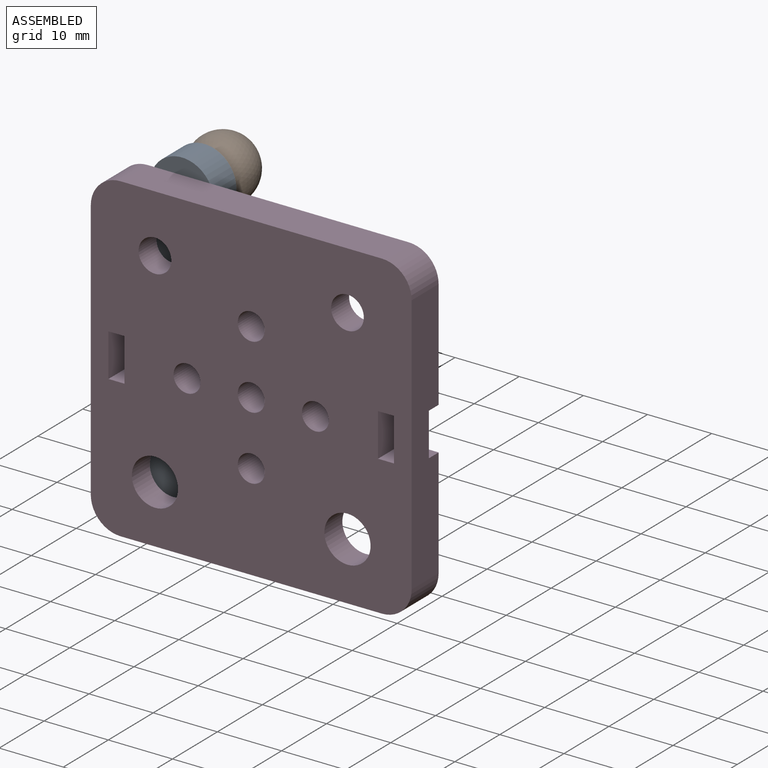
[diagram: assembled view]
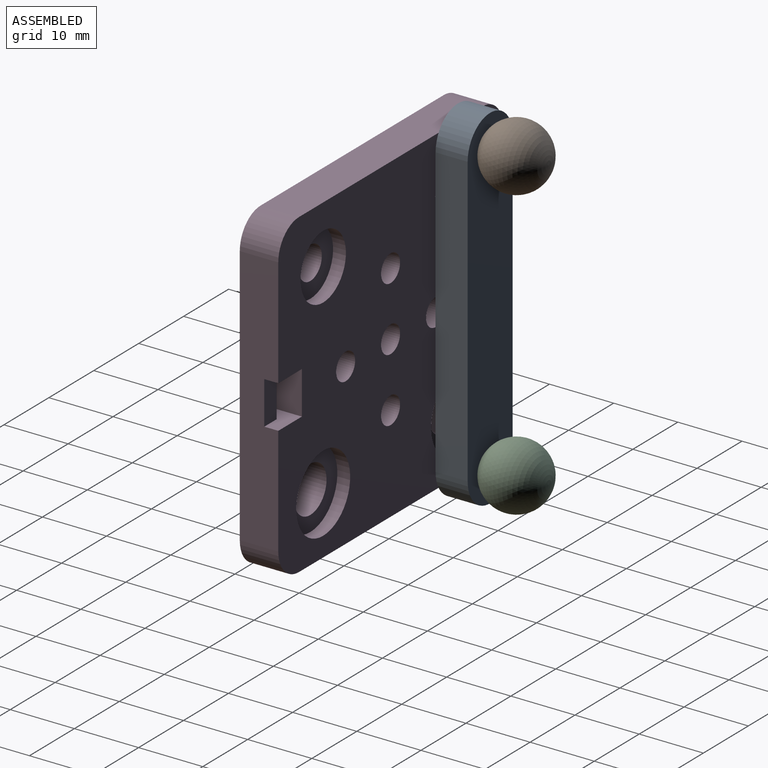
[diagram: assembled view, second angle]
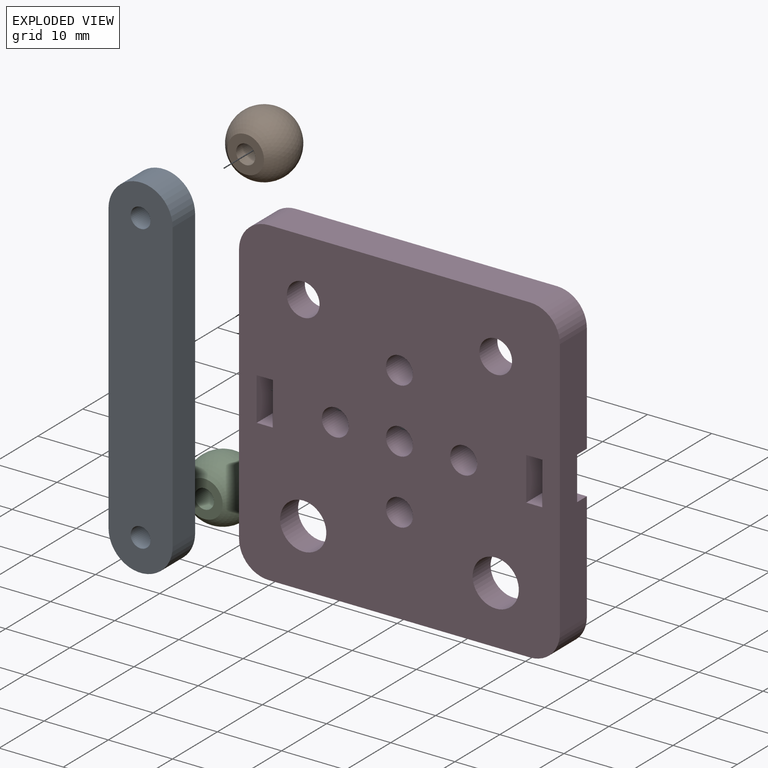
[diagram: exploded view]
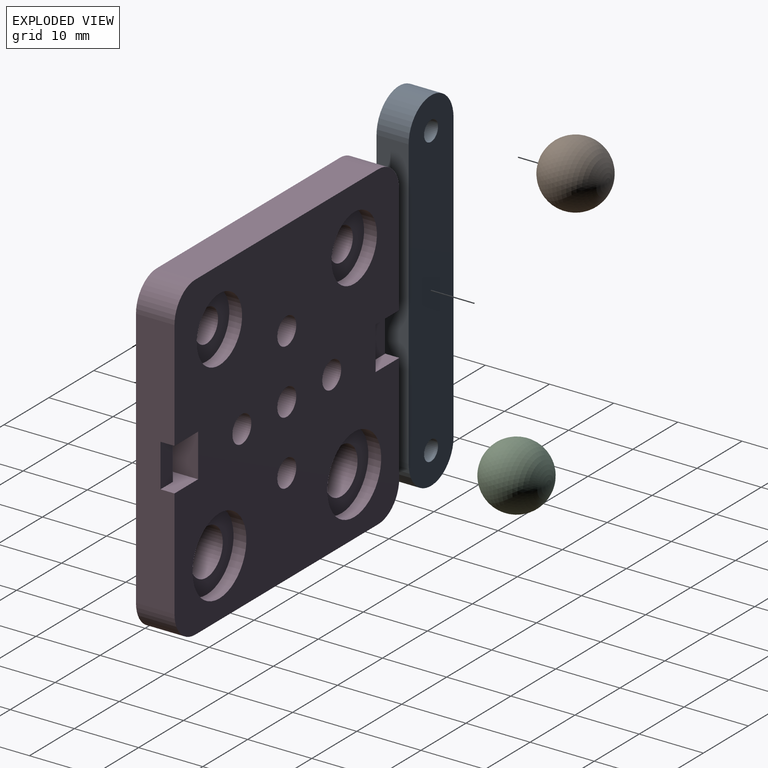
[diagram: exploded view, second angle]
ASSEMBLY  parts=4 mates=2
PART A: 8 faces, bbox 10x5x55 mm
  f0: cylinder r=5mm len=10mm, axis (0,-1,0), area 78.5mm2, adj f1,f4,f6,f7
  f1: plane 45x5mm, normal (1,0,0), area 225mm2, adj f0,f2,f6,f7
  f2: cylinder r=5mm len=10mm, axis (0,-1,0), area 78.5mm2, adj f1,f4,f6,f7
  f3: cylinder r=1.55mm len=5mm, axis (0,-1,0), area 48.7mm2, adj f6,f7
  f4: plane 45x5mm, normal (-1,0,0), area 225mm2, adj f0,f2,f6,f7
  f5: cylinder r=1.55mm len=5mm, axis (0,-1,0), area 48.7mm2, adj f6,f7
  f6: plane 55x10mm, normal (0,1,0), area 513.4mm2, adj f0,f1,f2,f3,f4,f5
  f7: plane 55x10mm, normal (0,-1,0), area 513.4mm2, adj f0,f1,f2,f3,f4,f5
PART B: 4 faces, bbox 10x9.1x10 mm
  f0: sphere r=5mm, area 286.2mm2, adj f3
  f1: plane 3x3mm, normal (0,-1,0), area 7.1mm2, adj f2
  f2: cylinder r=1.5mm len=4.11mm, axis (0,-1,0), area 38.7mm2, adj f1,f3
  f3: plane 5.7x5.7mm, normal (0,-1,0), area 18.4mm2, adj f0,f2
PART C: same geometry as B
PART D: 37 faces, bbox 50x6x50 mm
  f0: cylinder r=2.55mm len=5.1mm, axis (0,-1,0), area 64.1mm2, adj f5,f26
  f1: cylinder r=2.55mm len=5.1mm, axis (0,-1,0), area 64.1mm2, adj f5,f24
  f2: cylinder r=3.6mm len=7.2mm, axis (0,-1,0), area 90.5mm2, adj f5,f22
  f3: cylinder r=3.6mm len=7.2mm, axis (0,-1,0), area 90.5mm2, adj f5,f20
  f4: plane 50x50mm, normal (0,1,0), area 1955.5mm2, adj f6,f7,f8,f9,f10,f11,f12,f13
  f5: plane 50x50mm, normal (0,-1,0), area 2256.5mm2, adj f0,f1,f2,f3,f6,f7,f8,f9
  f6: cylinder r=4.63mm len=6mm, axis (0,-1,0), area 43.7mm2, adj f4,f5,f7,f13
  f7: plane 40.73x6mm, normal (-1,0,0), area 229.8mm2, adj f4,f5,f6,f8,f27,f29,f30
  f8: cylinder r=4.63mm len=6mm, axis (0,-1,0), area 43.7mm2, adj f4,f5,f7,f9
  f9: plane 40.73x6mm, normal (0,0,1), area 244.4mm2, adj f4,f5,f8,f10
  f10: cylinder r=4.63mm len=6mm, axis (0,-1,0), area 43.7mm2, adj f4,f5,f9,f11
  f11: plane 40.73x6mm, normal (1,0,0), area 229.8mm2, adj f4,f5,f10,f12,f31,f32,f34
  f12: cylinder r=4.63mm len=6mm, axis (0,-1,0), area 43.7mm2, adj f4,f5,f11,f13
  f13: plane 40.73x6mm, normal (0,0,-1), area 244.4mm2, adj f4,f5,f6,f12
  f14: cylinder r=2.1mm len=6mm, axis (0,1,0), area 79.2mm2, adj f4,f5
  f15: cylinder r=2.1mm len=6mm, axis (0,1,0), area 79.2mm2, adj f4,f5
  f16: cylinder r=2.1mm len=6mm, axis (0,1,0), area 79.2mm2, adj f4,f5
  f17: cylinder r=2.1mm len=6mm, axis (0,1,0), area 79.2mm2, adj f4,f5
  f18: cylinder r=2.1mm len=6mm, axis (0,1,0), area 79.2mm2, adj f4,f5
  f19: cylinder r=6mm len=12mm, axis (0,1,0), area 75.4mm2, adj f4,f20
  f20: plane 12x12mm, normal (0,1,0), area 72.4mm2, adj f3,f19
  f21: cylinder r=6mm len=12mm, axis (0,1,0), area 75.4mm2, adj f4,f22
  f22: plane 12x12mm, normal (0,1,0), area 72.4mm2, adj f2,f21
  f23: cylinder r=5.05mm len=10.1mm, axis (0,1,0), area 63.5mm2, adj f4,f24
  f24: plane 10.1x10.1mm, normal (0,1,0), area 59.7mm2, adj f1,f23
  f25: cylinder r=5.05mm len=10.1mm, axis (0,1,0), area 63.5mm2, adj f4,f26
  f26: plane 10.1x10.1mm, normal (0,1,0), area 59.7mm2, adj f0,f25
  f27: plane 6x5.25mm, normal (0,0,1), area 21mm2, adj f4,f5,f7,f28,f30,f35
  f28: plane 6.7x6mm, normal (-1,0,0), area 40.2mm2, adj f4,f5,f27,f29
  f29: plane 6x5.25mm, normal (0,0,-1), area 21mm2, adj f4,f5,f7,f28,f30,f35
  f30: plane 6.7x2.75mm, normal (0,1,0), area 18.4mm2, adj f7,f27,f29,f35
  f31: plane 6x5.25mm, normal (0,0,1), area 21mm2, adj f4,f5,f11,f33,f34,f36
  f32: plane 6x5.25mm, normal (0,0,-1), area 21mm2, adj f4,f5,f11,f33,f34,f36
  f33: plane 6.7x6mm, normal (1,0,0), area 40.2mm2, adj f4,f5,f31,f32
  f34: plane 6.7x2.75mm, normal (0,1,0), area 18.4mm2, adj f11,f31,f32,f36
  f35: plane 6.7x3.82mm, normal (1,0,0), area 25.6mm2, adj f5,f27,f29,f30
  f36: plane 6.7x3.82mm, normal (-1,0,0), area 25.6mm2, adj f5,f31,f32,f34
PLACE A t=(-19.14,-15.13,18.87)mm
PLACE B t=(-34.14,-0.02,41.37)mm
PLACE C t=(-34.14,-0.02,-3.63)mm
PLACE D t=(-19.14,-15.13,18.87)mm
MATE fastened B.f2 <-> A.f0  axis (0,-1,0) through (-34.14,-4.13,41.37)mm
MATE fastened A.f2 <-> C.f2  axis (0,1,0) through (-34.14,-4.13,-3.63)mm
